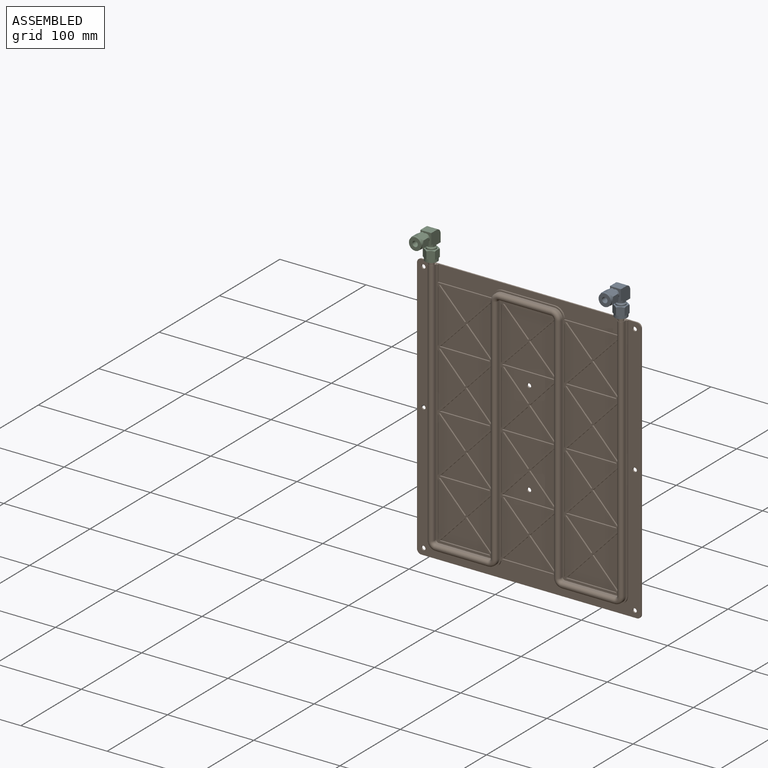
[diagram: assembled view]
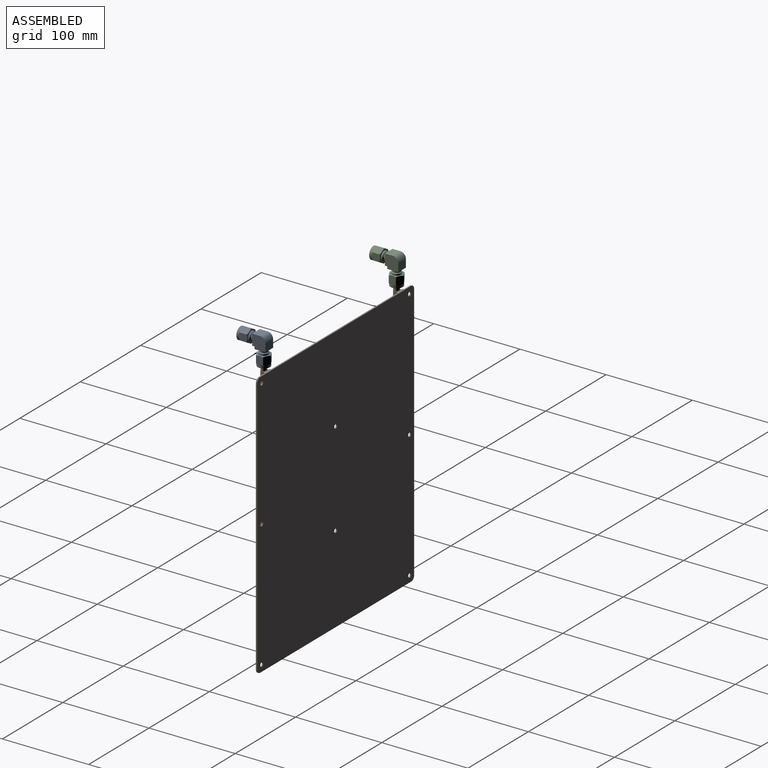
[diagram: assembled view, second angle]
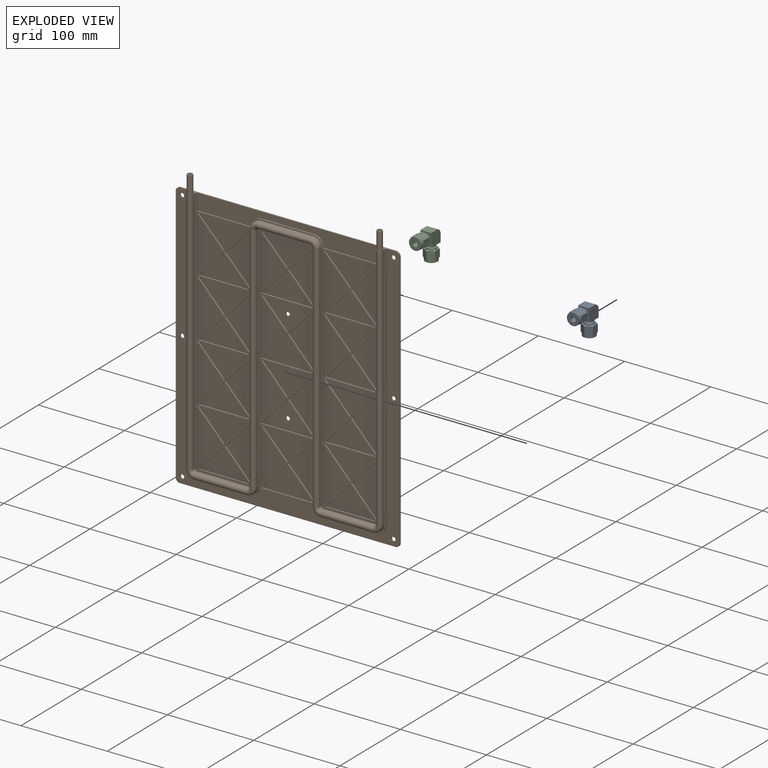
[diagram: exploded view]
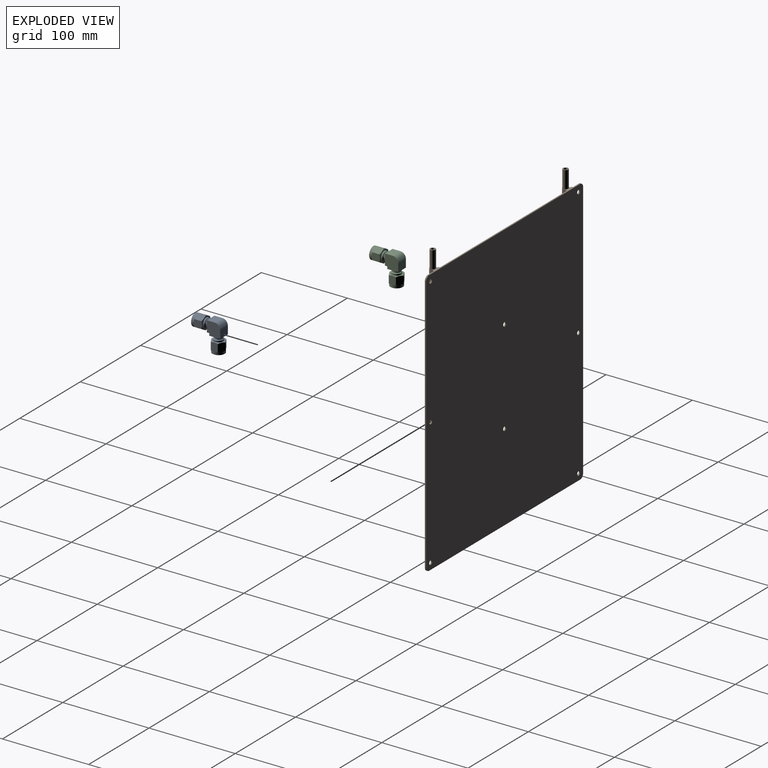
[diagram: exploded view, second angle]
ASSEMBLY  parts=3 mates=6
PART A: 64 faces, bbox 35.1x16.4x35.1 mm
  f0: cylinder r=3.17mm len=15.24mm, axis (1,0,0), area 304mm2, adj f1,f2
  f1: plane 6.35x6.35mm, normal (-1,0,0), area 13.4mm2, adj f0,f3
  f2: plane 14.22x14.22mm, normal (-1,0,0), area 127.2mm2, adj f0,f5
  f3: cylinder r=2.41mm len=11.68mm, axis (1,0,0), area 165.5mm2, adj f1,f4,f6
  f4: sphere r=2.41mm, area 18.3mm2, adj f3,f6
  f5: cylinder r=7.11mm len=14.22mm, axis (1,0,0), area 136.2mm2, adj f2,f7,f8,f9,f10,f11,f12
  f6: cylinder r=2.41mm len=11.68mm, axis (0,0,-1), area 165.5mm2, adj f3,f4,f13
  f7: cone r=7.66mm half-angle=60deg, axis (1,0,0), area 3.1mm2, adj f5,f14,f15
  f8: cone r=7.66mm half-angle=60deg, axis (1,0,0), area 3.1mm2, adj f5,f15,f16
  f9: cone r=7.66mm half-angle=60deg, axis (1,0,0), area 3.1mm2, adj f5,f16,f17
  f10: cone r=7.66mm half-angle=60deg, axis (1,0,0), area 3.1mm2, adj f5,f17,f18
  f11: cone r=7.66mm half-angle=60deg, axis (1,0,0), area 3.1mm2, adj f5,f18,f19
  f12: cone r=7.66mm half-angle=60deg, axis (1,0,0), area 3.1mm2, adj f5,f14,f19
  f13: plane 6.35x6.35mm, normal (0,0,-1), area 13.4mm2, adj f6,f20
  f14: plane 9.65x8.21mm, normal (0,1,0), area 75.7mm2, adj f7,f12,f15,f19,f21,f22
  f15: plane 9.65x7.11mm, normal (0,0.5,-0.87), area 75.7mm2, adj f7,f8,f14,f16,f22,f23
  f16: plane 9.65x7.11mm, normal (0,-0.5,-0.87), area 75.7mm2, adj f8,f9,f15,f17,f23,f24
  f17: plane 9.65x8.21mm, normal (0,-1,0), area 75.7mm2, adj f9,f10,f16,f18,f24,f25
  f18: plane 9.65x7.11mm, normal (0,-0.5,0.87), area 75.7mm2, adj f10,f11,f17,f19,f25,f26
  f19: plane 9.65x7.11mm, normal (0,0.5,0.87), area 75.7mm2, adj f11,f12,f14,f18,f21,f26
  f20: cylinder r=3.17mm len=15.24mm, axis (0,0,1), area 304mm2, adj f13,f27
  f21: cone r=7.66mm half-angle=60deg, axis (-1,0,0), area 3.1mm2, adj f14,f19,f28
  f22: cone r=7.66mm half-angle=60deg, axis (-1,0,0), area 3.1mm2, adj f14,f15,f28
  f23: cone r=7.66mm half-angle=60deg, axis (-1,0,0), area 3.1mm2, adj f15,f16,f28
  f24: cone r=7.66mm half-angle=60deg, axis (-1,0,0), area 3.1mm2, adj f16,f17,f28
  f25: cone r=7.66mm half-angle=60deg, axis (-1,0,0), area 3.1mm2, adj f17,f18,f28
  f26: cone r=7.66mm half-angle=60deg, axis (-1,0,0), area 3.1mm2, adj f18,f19,f28
  f27: plane 14.22x14.22mm, normal (0,0,-1), area 127.2mm2, adj f20,f29
  f28: plane 14.22x14.22mm, normal (1,0,0), area 61.9mm2, adj f21,f22,f23,f24,f25,f26,f30
  f29: cylinder r=7.11mm len=14.22mm, axis (0,0,1), area 136.2mm2, adj f27,f31,f32,f33,f34,f35,f36
  f30: cylinder r=5.56mm len=11.11mm, axis (1,0,0), area 51mm2, adj f28,f37
  f31: cone r=7.66mm half-angle=60deg, axis (0,0,1), area 3.1mm2, adj f29,f38,f39
  f32: cone r=7.66mm half-angle=60deg, axis (0,0,1), area 3.1mm2, adj f29,f39,f40
  f33: cone r=7.66mm half-angle=60deg, axis (0,0,1), area 3.1mm2, adj f29,f40,f41
  f34: cone r=7.66mm half-angle=60deg, axis (0,0,1), area 3.1mm2, adj f29,f41,f42
  f35: cone r=7.66mm half-angle=60deg, axis (0,0,1), area 3.1mm2, adj f29,f42,f43
  f36: cone r=7.66mm half-angle=60deg, axis (0,0,1), area 3.1mm2, adj f29,f38,f43
  f37: cone r=5.02mm half-angle=45deg, axis (-1,0,0), area 48.1mm2, adj f30,f44
  f38: plane 9.65x8.21mm, normal (0,1,0), area 75.7mm2, adj f31,f36,f39,f43,f45,f46
  f39: plane 9.65x7.11mm, normal (0.87,0.5,0), area 75.7mm2, adj f31,f32,f38,f40,f46,f47
  f40: plane 9.65x7.11mm, normal (0.87,-0.5,0), area 75.7mm2, adj f32,f33,f39,f41,f47,f48
  f41: plane 9.65x8.21mm, normal (0,-1,0), area 75.7mm2, adj f33,f34,f40,f42,f48,f49
  f42: plane 9.65x7.11mm, normal (-0.87,-0.5,0), area 75.7mm2, adj f34,f35,f41,f43,f49,f50
  f43: plane 9.65x7.11mm, normal (-0.87,0.5,0), area 75.7mm2, adj f35,f36,f38,f42,f45,f50
  f44: cylinder r=4.48mm len=8.95mm, axis (1,0,0), area 71.4mm2, adj f37,f52
  f45: cone r=7.66mm half-angle=60deg, axis (0,0,-1), area 3.1mm2, adj f38,f43,f55
  f46: cone r=7.66mm half-angle=60deg, axis (0,0,-1), area 3.1mm2, adj f38,f39,f55
  f47: cone r=7.66mm half-angle=60deg, axis (0,0,-1), area 3.1mm2, adj f39,f40,f55
  f48: cone r=7.66mm half-angle=60deg, axis (0,0,-1), area 3.1mm2, adj f40,f41,f55
  f49: cone r=7.66mm half-angle=60deg, axis (0,0,-1), area 3.1mm2, adj f41,f42,f55
  f50: cone r=7.66mm half-angle=60deg, axis (0,0,-1), area 3.1mm2, adj f42,f43,f55
  f51: plane 12.7x2.79mm, normal (0,0,-1), area 35.5mm2, adj f52,f57,f58,f59
  f52: plane 12.7x12.7mm, normal (-1,0,0), area 98.3mm2, adj f44,f51,f53,f57,f59
  f53: plane 12.7x9.14mm, normal (0,0,1), area 116.1mm2, adj f52,f54,f57,f59
  f54: cylinder r=6.35mm len=12.7mm, axis (0,-1,0), area 126.7mm2, adj f53,f57,f59,f60
  f55: plane 14.22x14.22mm, normal (0,0,1), area 61.9mm2, adj f45,f46,f47,f48,f49,f50,f56
  f56: cylinder r=5.56mm len=11.11mm, axis (0,0,1), area 51mm2, adj f55,f61
  f57: plane 15.49x15.49mm, normal (0,1,0), area 223.6mm2, adj f51,f52,f53,f54,f58,f60,f62
  f58: plane 12.7x2.79mm, normal (-1,0,0), area 35.5mm2, adj f51,f57,f59,f62
  f59: plane 15.49x15.49mm, normal (0,-1,0), area 223.6mm2, adj f51,f52,f53,f54,f58,f60,f62
  f60: plane 12.7x9.14mm, normal (1,0,0), area 116.1mm2, adj f54,f57,f59,f62
  f61: cone r=5.02mm half-angle=45deg, axis (0,0,-1), area 48.1mm2, adj f56,f63
  f62: plane 12.7x12.7mm, normal (0,0,-1), area 98.3mm2, adj f57,f58,f59,f60,f63
  f63: cylinder r=4.48mm len=8.95mm, axis (0,0,1), area 71.4mm2, adj f61,f62
PART B: 318 faces, bbox 260x9.8x330 mm
  f0: cylinder r=1.91mm len=31.02mm, axis (0,0,1), area 368.6mm2, adj f143,f316,f317
  f1: plane 64.4x30.19mm, normal (0,-1,0), area 972.3mm2, adj f15,f293,f294
  f2: plane 63.41x30.18mm, normal (0,-1,0), area 957mm2, adj f16,f295,f296
  f3: plane 310x260mm, normal (0,-1,0), area 12094.7mm2, adj f50,f71,f72,f73,f74,f75,f76,f77
  f4: plane 63.41x30.18mm, normal (0,-1,0), area 957mm2, adj f9,f281,f282
  f5: plane 64.4x30.19mm, normal (0,-1,0), area 972.3mm2, adj f10,f283,f284
  f6: plane 64.4x30.19mm, normal (0,-1,0), area 972.3mm2, adj f11,f285,f286
  f7: plane 62.17x30.17mm, normal (0,-1,0), area 937.9mm2, adj f12,f287,f288
  f8: plane 62.17x30.17mm, normal (0,-1,0), area 937.9mm2, adj f13,f289,f290
  f9: plane 63.41x1.59mm, normal (1,0,0), area 100.7mm2, adj f4,f128,f281,f282
  f10: plane 64.4x1.59mm, normal (1,0,0), area 102.2mm2, adj f5,f128,f283,f284
  f11: plane 64.4x1.59mm, normal (1,0,0), area 102.2mm2, adj f6,f128,f285,f286
  f12: plane 62.17x1.59mm, normal (1,0,0), area 98.7mm2, adj f7,f128,f287,f288
  f13: plane 62.17x1.59mm, normal (-1,0,0), area 98.7mm2, adj f8,f128,f289,f290
  f14: plane 64.4x1.59mm, normal (-1,0,0), area 102.2mm2, adj f114,f128,f291,f292
  f15: plane 64.4x1.59mm, normal (-1,0,0), area 102.2mm2, adj f1,f128,f293,f294
  f16: plane 63.41x1.59mm, normal (-1,0,0), area 100.7mm2, adj f2,f128,f295,f296
  f17: plane 63.84x30.19mm, normal (0,-1,0), area 963.7mm2, adj f27,f244,f245
  f18: plane 62.85x30.18mm, normal (0,-1,0), area 948.4mm2, adj f28,f246,f247
  f19: plane 209.84x18.65mm, normal (0,-1,0), area 3015.3mm2, adj f29,f50,f136,f138,f139,f140,f199,f248
  f20: plane 62.85x30.18mm, normal (0,-1,0), area 948.4mm2, adj f30,f232,f233
  f21: plane 63.84x30.19mm, normal (0,-1,0), area 963.7mm2, adj f31,f234,f235
  f22: plane 63.84x30.19mm, normal (0,-1,0), area 963.7mm2, adj f32,f236,f237
  f23: plane 63.84x30.19mm, normal (0,-1,0), area 963.7mm2, adj f33,f238,f239
  f24: plane 63.84x30.19mm, normal (0,-1,0), area 963.7mm2, adj f25,f240,f241
  f25: plane 63.84x1.59mm, normal (1,0,0), area 101.4mm2, adj f24,f137,f240,f241
  f26: plane 63.84x1.59mm, normal (1,0,0), area 101.4mm2, adj f36,f137,f242,f243
  f27: plane 63.84x1.59mm, normal (1,0,0), area 101.4mm2, adj f17,f137,f244,f245
  f28: plane 62.85x1.59mm, normal (1,0,0), area 99.8mm2, adj f18,f137,f246,f247
  f29: plane 18.65x1.59mm, normal (-1,0,0), area 29.6mm2, adj f19,f50,f137,f248
  f30: plane 62.85x1.59mm, normal (-1,0,0), area 99.8mm2, adj f20,f137,f232,f233
  f31: plane 63.84x1.59mm, normal (-1,0,0), area 101.4mm2, adj f21,f137,f234,f235
  f32: plane 63.84x1.59mm, normal (-1,0,0), area 101.4mm2, adj f22,f137,f236,f237
  f33: plane 63.84x1.59mm, normal (-1,0,0), area 101.4mm2, adj f23,f137,f238,f239
  f34: plane 63.84x30.19mm, normal (0,-1,0), area 963.7mm2, adj f44,f195,f196
  f35: plane 62.85x30.18mm, normal (0,-1,0), area 948.4mm2, adj f45,f197,f198
  f36: plane 63.84x30.19mm, normal (0,-1,0), area 963.7mm2, adj f26,f242,f243
  f37: plane 62.85x30.18mm, normal (0,-1,0), area 948.4mm2, adj f46,f183,f184
  f38: plane 63.84x30.19mm, normal (0,-1,0), area 963.7mm2, adj f47,f185,f186
  f39: plane 63.84x30.19mm, normal (0,-1,0), area 963.7mm2, adj f48,f187,f188
  f40: plane 63.84x30.19mm, normal (0,-1,0), area 963.7mm2, adj f49,f189,f190
  f41: plane 63.84x30.19mm, normal (0,-1,0), area 963.7mm2, adj f42,f191,f192
  f42: plane 63.84x1.59mm, normal (1,0,0), area 101.4mm2, adj f41,f137,f191,f192
  f43: plane 63.84x1.59mm, normal (1,0,0), area 101.4mm2, adj f124,f137,f193,f194
  f44: plane 63.84x1.59mm, normal (1,0,0), area 101.4mm2, adj f34,f137,f195,f196
  f45: plane 62.85x1.59mm, normal (1,0,0), area 99.8mm2, adj f35,f137,f197,f198
  f46: plane 62.85x1.59mm, normal (-1,0,0), area 99.8mm2, adj f37,f137,f183,f184
  f47: plane 63.84x1.59mm, normal (-1,0,0), area 101.4mm2, adj f38,f137,f185,f186
  f48: plane 63.84x1.59mm, normal (-1,0,0), area 101.4mm2, adj f39,f137,f187,f188
  f49: plane 63.84x1.59mm, normal (-1,0,0), area 101.4mm2, adj f40,f137,f189,f190
  f50: plane 250x9.78mm, normal (0,0,1), area 431.3mm2, adj f3,f19,f29,f56,f57,f73,f74,f78
  f51: plane 275.95x3.81mm, normal (-1,0,0), area 1051.4mm2, adj f52,f53,f112,f314
  f52: cylinder r=2.54mm len=275.95mm, axis (0,0,1), area 2202mm2, adj f51,f111,f113,f315
  f53: plane 287.78x225.08mm, normal (0,-1,0), area 6795.2mm2, adj f51,f54,f79,f80,f82,f83,f85,f86
  f54: plane 275.95x3.81mm, normal (-1,0,0), area 1051.4mm2, adj f53,f55,f80,f316
  f55: cylinder r=2.54mm len=275.95mm, axis (0,0,-1), area 2202mm2, adj f54,f79,f81,f317
  f56: plane 288.65x3.24mm, normal (1,0,0), area 934.8mm2, adj f50,f63,f137,f146
  f57: plane 288.65x3.24mm, normal (-1,0,0), area 934.8mm2, adj f50,f66,f137,f158
  f58: plane 60.63x3.24mm, normal (0,0,1), area 196.4mm2, adj f63,f64,f137,f148
  f59: plane 270x3.24mm, normal (-1,0,0), area 874.4mm2, adj f64,f125,f137,f150
  f60: plane 60.63x3.24mm, normal (0,0,1), area 196.4mm2, adj f125,f126,f137,f152
  f61: plane 270x3.24mm, normal (1,0,0), area 874.4mm2, adj f65,f126,f137,f154
  f62: plane 60.63x3.24mm, normal (0,0,1), area 196.4mm2, adj f65,f66,f137,f156
  f63: cylinder r=2.92mm len=3.24mm, axis (0,-1,0), area 14.9mm2, adj f56,f58,f137,f147
  f64: cylinder r=2.92mm len=3.24mm, axis (0,-1,0), area 14.9mm2, adj f58,f59,f137,f149
  f65: cylinder r=2.92mm len=3.24mm, axis (0,-1,0), area 14.9mm2, adj f61,f62,f137,f155
  f66: cylinder r=2.92mm len=3.24mm, axis (0,-1,0), area 14.9mm2, adj f57,f62,f137,f157
  f67: cylinder r=9.78mm len=9.78mm, axis (0,-1,0), area 49.7mm2, adj f115,f122,f128,f147
  f68: cylinder r=9.78mm len=9.78mm, axis (0,-1,0), area 49.7mm2, adj f115,f116,f128,f149
  f69: cylinder r=9.78mm len=9.78mm, axis (0,-1,0), area 49.7mm2, adj f120,f121,f128,f155
  f70: cylinder r=9.78mm len=9.78mm, axis (0,-1,0), area 49.7mm2, adj f121,f123,f128,f157
  f71: plane 300x1.52mm, normal (-1,0,0), area 457.2mm2, adj f3,f74,f75,f78
  f72: cylinder r=5mm len=5mm, axis (0,1,0), area 12mm2, adj f3,f76,f77,f78
  f73: cylinder r=5mm len=5mm, axis (0,-1,0), area 12mm2, adj f3,f50,f77,f78
  f74: cylinder r=5mm len=5mm, axis (0,1,0), area 12mm2, adj f3,f50,f71,f78
  f75: cylinder r=5mm len=5mm, axis (0,-1,0), area 12mm2, adj f3,f71,f76,f78
  f76: plane 250x1.52mm, normal (0,0,-1), area 381mm2, adj f3,f72,f75,f78
  f77: plane 300x1.52mm, normal (1,0,0), area 457.2mm2, adj f3,f72,f73,f78
  f78: plane 310x260mm, normal (0,1,0), area 80436mm2, adj f50,f71,f72,f73,f74,f75,f76,f77
  f79: plane 275.95x3.81mm, normal (1,0,0), area 1051.4mm2, adj f53,f55,f82,f316
  f80: cylinder r=3.81mm len=3.81mm, axis (0,-1,0), area 22.8mm2, adj f53,f54,f81,f83
  f81: torus R=6.35mm, axis (0,-1,0), area 79.6mm2, adj f55,f80,f82,f84
  f82: cylinder r=8.89mm len=8.89mm, axis (0,-1,0), area 53.2mm2, adj f53,f79,f81,f85
  f83: plane 60.63x3.81mm, normal (0,0,-1), area 231mm2, adj f53,f80,f84,f86
  f84: cylinder r=2.54mm len=60.63mm, axis (1,0,0), area 483.8mm2, adj f81,f83,f85,f87
  f85: plane 60.63x3.81mm, normal (0,0,1), area 231mm2, adj f53,f82,f84,f88
  f86: cylinder r=3.81mm len=3.81mm, axis (0,-1,0), area 22.8mm2, adj f53,f83,f87,f89
  f87: torus R=6.35mm, axis (0,-1,0), area 79.6mm2, adj f84,f86,f88,f90
  f88: cylinder r=8.89mm len=8.89mm, axis (0,-1,0), area 53.2mm2, adj f53,f85,f87,f91
  f89: plane 270x3.81mm, normal (1,0,0), area 1028.7mm2, adj f53,f86,f90,f92
  f90: cylinder r=2.54mm len=270mm, axis (0,0,1), area 2154.5mm2, adj f87,f89,f91,f93
  f91: plane 270x3.81mm, normal (-1,0,0), area 1028.7mm2, adj f53,f88,f90,f94
  f92: cylinder r=8.89mm len=8.89mm, axis (0,1,0), area 53.2mm2, adj f53,f89,f93,f95
  f93: torus R=6.35mm, axis (0,1,0), area 79.6mm2, adj f90,f92,f94,f96
  f94: cylinder r=3.81mm len=3.81mm, axis (0,1,0), area 22.8mm2, adj f53,f91,f93,f97
  f95: plane 60.63x3.81mm, normal (0,0,-1), area 231mm2, adj f53,f92,f96,f98
  f96: cylinder r=2.54mm len=60.63mm, axis (1,0,0), area 483.8mm2, adj f93,f95,f97,f99
  f97: plane 60.63x3.81mm, normal (0,0,1), area 231mm2, adj f53,f94,f96,f100
  f98: cylinder r=8.89mm len=8.89mm, axis (0,1,0), area 53.2mm2, adj f53,f95,f99,f101
  f99: torus R=6.35mm, axis (0,1,0), area 79.6mm2, adj f96,f98,f100,f102
  f100: cylinder r=3.81mm len=3.81mm, axis (0,1,0), area 22.8mm2, adj f53,f97,f99,f103
  f101: plane 270x3.81mm, normal (-1,0,0), area 1028.7mm2, adj f53,f98,f102,f104
  f102: cylinder r=2.54mm len=270mm, axis (0,0,-1), area 2154.5mm2, adj f99,f101,f103,f105
  f103: plane 270x3.81mm, normal (1,0,0), area 1028.7mm2, adj f53,f100,f102,f106
  f104: cylinder r=3.81mm len=3.81mm, axis (0,-1,0), area 22.8mm2, adj f53,f101,f105,f107
  f105: torus R=6.35mm, axis (0,-1,0), area 79.6mm2, adj f102,f104,f106,f108
  f106: cylinder r=8.89mm len=8.89mm, axis (0,-1,0), area 53.2mm2, adj f53,f103,f105,f109
  f107: plane 60.63x3.81mm, normal (0,0,-1), area 231mm2, adj f53,f104,f108,f110
  f108: cylinder r=2.54mm len=60.63mm, axis (1,0,0), area 483.8mm2, adj f105,f107,f109,f111
  f109: plane 60.63x3.81mm, normal (0,0,1), area 231mm2, adj f53,f106,f108,f112
  f110: cylinder r=3.81mm len=3.81mm, axis (0,-1,0), area 22.8mm2, adj f53,f107,f111,f113
  f111: torus R=6.35mm, axis (0,-1,0), area 79.6mm2, adj f52,f108,f110,f112
  f112: cylinder r=8.89mm len=8.89mm, axis (0,-1,0), area 53.2mm2, adj f51,f53,f109,f111
  f113: plane 275.95x3.81mm, normal (1,0,0), area 1051.4mm2, adj f52,f53,f110,f314
  f114: plane 64.4x30.19mm, normal (0,-1,0), area 972.3mm2, adj f14,f291,f292
  f115: plane 60.63x3.24mm, normal (0,0,-1), area 196.4mm2, adj f67,f68,f128,f148
  f116: plane 270x3.24mm, normal (1,0,0), area 874.4mm2, adj f68,f117,f128,f150
  f117: cylinder r=2.92mm len=3.24mm, axis (0,-1,0), area 14.9mm2, adj f116,f118,f128,f151
  f118: plane 60.63x3.24mm, normal (0,0,-1), area 196.4mm2, adj f117,f119,f128,f152
  f119: cylinder r=2.92mm len=3.24mm, axis (0,-1,0), area 14.9mm2, adj f118,f120,f128,f153
  f120: plane 270x3.24mm, normal (-1,0,0), area 874.4mm2, adj f69,f119,f128,f154
  f121: plane 60.63x3.24mm, normal (0,0,-1), area 196.4mm2, adj f69,f70,f128,f156
  f122: plane 288.65x3.24mm, normal (-1,0,0), area 934.8mm2, adj f50,f67,f128,f146
  f123: plane 288.65x3.24mm, normal (1,0,0), area 934.8mm2, adj f50,f70,f128,f158
  f124: plane 63.84x30.19mm, normal (0,-1,0), area 963.7mm2, adj f43,f193,f194
  f125: cylinder r=9.78mm len=9.78mm, axis (0,-1,0), area 49.7mm2, adj f59,f60,f137,f151
  f126: cylinder r=9.78mm len=9.78mm, axis (0,-1,0), area 49.7mm2, adj f60,f61,f137,f153
  f127: plane 288.65x1.59mm, normal (-1,0,0), area 458.2mm2, adj f3,f50,f128,f129
  f128: plane 300.08x230.16mm, normal (0,-1,0), area 4430.8mm2, adj f9,f10,f11,f12,f13,f14,f15,f16
  f129: cylinder r=11.43mm len=11.43mm, axis (0,-1,0), area 28.5mm2, adj f3,f127,f128,f130
  f130: plane 60.63x1.59mm, normal (0,0,-1), area 96.3mm2, adj f3,f128,f129,f131
  f131: cylinder r=11.43mm len=11.2mm, axis (0,-1,0), area 24.8mm2, adj f3,f128,f130,f297
  f132: cylinder r=11.43mm len=11.2mm, axis (0,-1,0), area 24.8mm2, adj f3,f128,f133,f297
  f133: plane 60.63x1.59mm, normal (0,0,-1), area 96.3mm2, adj f3,f128,f132,f134
  f134: cylinder r=11.43mm len=11.43mm, axis (0,-1,0), area 28.5mm2, adj f3,f128,f133,f135
  f135: plane 288.65x1.59mm, normal (1,0,0), area 458.2mm2, adj f3,f50,f128,f134
  f136: plane 18.65x1.59mm, normal (1,0,0), area 29.6mm2, adj f19,f50,f137,f199
  f137: plane 291.57x213.14mm, normal (0,-1,0), area 6262.1mm2, adj f25,f26,f27,f28,f29,f30,f31,f32
  f138: cylinder r=11.43mm len=11.43mm, axis (0,1,0), area 28.5mm2, adj f19,f137,f139,f199
  f139: plane 60.63x1.59mm, normal (0,0,1), area 96.3mm2, adj f19,f137,f138,f140
  f140: cylinder r=11.43mm len=11.43mm, axis (0,1,0), area 28.5mm2, adj f19,f137,f139,f248
  f141: cylinder r=1.91mm len=31.02mm, axis (0,0,1), area 368.6mm2, adj f145,f314,f315
  f142: cylinder r=3.17mm len=20mm, axis (0,0,-1), area 399mm2, adj f50,f143
  f143: plane 6.35x6.35mm, normal (0,0,1), area 20.3mm2, adj f0,f142
  f144: cylinder r=3.17mm len=20mm, axis (0,0,-1), area 399mm2, adj f50,f145
  f145: plane 6.35x6.35mm, normal (0,0,1), area 20.3mm2, adj f141,f144
  f146: cylinder r=3.43mm len=288.65mm, axis (0,0,1), area 3109.5mm2, adj f50,f56,f122,f147
  f147: torus R=6.35mm, axis (0,-1,0), area 107.5mm2, adj f63,f67,f146,f148
  f148: cylinder r=3.43mm len=60.63mm, axis (-1,0,0), area 653.2mm2, adj f58,f115,f147,f149
  f149: torus R=6.35mm, axis (0,-1,0), area 107.5mm2, adj f64,f68,f148,f150
  f150: cylinder r=3.43mm len=270mm, axis (0,0,-1), area 2908.6mm2, adj f59,f116,f149,f151
  f151: torus R=6.35mm, axis (0,-1,0), area 107.5mm2, adj f117,f125,f150,f152
  f152: cylinder r=3.43mm len=60.63mm, axis (-1,0,0), area 653.2mm2, adj f60,f118,f151,f153
  f153: torus R=6.35mm, axis (0,-1,0), area 107.5mm2, adj f119,f126,f152,f154
  f154: cylinder r=3.43mm len=270mm, axis (0,0,1), area 2908.6mm2, adj f61,f120,f153,f155
  f155: torus R=6.35mm, axis (0,-1,0), area 107.5mm2, adj f65,f69,f154,f156
  f156: cylinder r=3.43mm len=60.63mm, axis (-1,0,0), area 653.2mm2, adj f62,f121,f155,f157
  f157: torus R=6.35mm, axis (0,-1,0), area 107.5mm2, adj f66,f70,f156,f158
  f158: cylinder r=3.43mm len=288.65mm, axis (0,0,-1), area 3109.5mm2, adj f50,f57,f123,f157
  f159: plane 58.46x1.59mm, normal (0,0,1), area 92.8mm2, adj f137,f160,f161,f206
  f160: plane 30.91x29.23mm, normal (-0.73,0,-0.69), area 67.5mm2, adj f137,f159,f161,f206
  f161: plane 30.91x29.23mm, normal (0.73,0,-0.69), area 67.5mm2, adj f137,f159,f160,f206
  f162: plane 31.92x30.19mm, normal (0.73,0,0.69), area 69.7mm2, adj f137,f163,f164,f205
  f163: plane 31.92x30.19mm, normal (-0.73,0,0.69), area 69.7mm2, adj f137,f162,f164,f205
  f164: plane 60.38x1.59mm, normal (0,0,-1), area 95.8mm2, adj f137,f162,f163,f205
  f165: plane 58.46x1.59mm, normal (0,0,1), area 92.8mm2, adj f137,f166,f167,f204
  f166: plane 30.91x29.23mm, normal (-0.73,0,-0.69), area 67.5mm2, adj f137,f165,f167,f204
  f167: plane 30.91x29.23mm, normal (0.73,0,-0.69), area 67.5mm2, adj f137,f165,f166,f204
  f168: plane 31.92x30.19mm, normal (0.73,0,0.69), area 69.7mm2, adj f137,f169,f170,f203
  f169: plane 31.92x30.19mm, normal (-0.73,0,0.69), area 69.7mm2, adj f137,f168,f170,f203
  f170: plane 60.38x1.59mm, normal (0,0,-1), area 95.8mm2, adj f137,f168,f169,f203
  f171: plane 58.46x1.59mm, normal (0,0,1), area 92.8mm2, adj f137,f172,f173,f202
  f172: plane 30.91x29.23mm, normal (-0.73,0,-0.69), area 67.5mm2, adj f137,f171,f173,f202
  f173: plane 30.91x29.23mm, normal (0.73,0,-0.69), area 67.5mm2, adj f137,f171,f172,f202
  f174: plane 31.92x30.19mm, normal (0.73,0,0.69), area 69.7mm2, adj f137,f175,f176,f201
  f175: plane 31.92x30.19mm, normal (-0.73,0,0.69), area 69.7mm2, adj f137,f174,f176,f201
  f176: plane 60.38x1.59mm, normal (0,0,-1), area 95.8mm2, adj f137,f174,f175,f201
  f177: plane 58.41x1.59mm, normal (0,0,1), area 92.7mm2, adj f137,f178,f179,f200
  f178: plane 30.41x29.2mm, normal (-0.72,0,-0.69), area 66.9mm2, adj f137,f177,f179,f200
  f179: plane 30.41x29.2mm, normal (0.72,0,-0.69), area 66.9mm2, adj f137,f177,f178,f200
  f180: plane 31.43x30.18mm, normal (0.72,0,0.69), area 69.2mm2, adj f137,f181,f182,f207
  f181: plane 31.43x30.18mm, normal (-0.72,0,0.69), area 69.2mm2, adj f137,f180,f182,f207
  f182: plane 60.36x1.59mm, normal (0,0,-1), area 95.8mm2, adj f137,f180,f181,f207
  f183: plane 31.43x30.18mm, normal (0.72,0,-0.69), area 69.2mm2, adj f37,f46,f137,f184
  f184: plane 31.43x30.18mm, normal (0.72,0,0.69), area 69.2mm2, adj f37,f46,f137,f183
  f185: plane 31.92x30.19mm, normal (0.73,0,-0.69), area 69.7mm2, adj f38,f47,f137,f186
  f186: plane 31.92x30.19mm, normal (0.73,0,0.69), area 69.7mm2, adj f38,f47,f137,f185
  f187: plane 31.92x30.19mm, normal (0.73,0,-0.69), area 69.7mm2, adj f39,f48,f137,f188
  f188: plane 31.92x30.19mm, normal (0.73,0,0.69), area 69.7mm2, adj f39,f48,f137,f187
  f189: plane 31.92x30.19mm, normal (0.73,0,-0.69), area 69.7mm2, adj f40,f49,f137,f190
  f190: plane 31.92x30.19mm, normal (0.73,0,0.69), area 69.7mm2, adj f40,f49,f137,f189
  f191: plane 31.92x30.19mm, normal (-0.73,0,0.69), area 69.7mm2, adj f41,f42,f137,f192
  f192: plane 31.92x30.19mm, normal (-0.73,0,-0.69), area 69.7mm2, adj f41,f42,f137,f191
  f193: plane 31.92x30.19mm, normal (-0.73,0,0.69), area 69.7mm2, adj f43,f124,f137,f194
  f194: plane 31.92x30.19mm, normal (-0.73,0,-0.69), area 69.7mm2, adj f43,f124,f137,f193
  f195: plane 31.92x30.19mm, normal (-0.73,0,0.69), area 69.7mm2, adj f34,f44,f137,f196
  f196: plane 31.92x30.19mm, normal (-0.73,0,-0.69), area 69.7mm2, adj f34,f44,f137,f195
  f197: plane 31.43x30.18mm, normal (-0.72,0,0.69), area 69.2mm2, adj f35,f45,f137,f198
  f198: plane 31.43x30.18mm, normal (-0.72,0,-0.69), area 69.2mm2, adj f35,f45,f137,f197
  f199: plane 63.17x1.59mm, normal (0,0,1), area 100.3mm2, adj f19,f136,f137,f138
  f200: plane 58.41x30.41mm, normal (0,-1,0), area 888mm2, adj f177,f178,f179
  f201: plane 60.38x31.92mm, normal (0,-1,0), area 963.7mm2, adj f174,f175,f176
  f202: plane 58.46x30.91mm, normal (0,-1,0), area 903.3mm2, adj f171,f172,f173
  f203: plane 60.38x31.92mm, normal (0,-1,0), area 963.7mm2, adj f168,f169,f170
  f204: plane 58.46x30.91mm, normal (0,-1,0), area 903.3mm2, adj f165,f166,f167
  f205: plane 60.38x31.92mm, normal (0,-1,0), area 963.7mm2, adj f162,f163,f164
  f206: plane 58.46x30.91mm, normal (0,-1,0), area 903.3mm2, adj f159,f160,f161
  f207: plane 60.36x31.43mm, normal (0,-1,0), area 948.4mm2, adj f180,f181,f182
  f208: plane 58.46x1.59mm, normal (0,0,1), area 92.8mm2, adj f137,f209,f210,f255
  f209: plane 30.91x29.23mm, normal (-0.73,0,-0.69), area 67.5mm2, adj f137,f208,f210,f255
  f210: plane 30.91x29.23mm, normal (0.73,0,-0.69), area 67.5mm2, adj f137,f208,f209,f255
  f211: plane 31.92x30.19mm, normal (0.73,0,0.69), area 69.7mm2, adj f137,f212,f213,f254
  f212: plane 31.92x30.19mm, normal (-0.73,0,0.69), area 69.7mm2, adj f137,f211,f213,f254
  f213: plane 60.38x1.59mm, normal (0,0,-1), area 95.8mm2, adj f137,f211,f212,f254
  f214: plane 58.46x1.59mm, normal (0,0,1), area 92.8mm2, adj f137,f215,f216,f253
  f215: plane 30.91x29.23mm, normal (-0.73,0,-0.69), area 67.5mm2, adj f137,f214,f216,f253
  f216: plane 30.91x29.23mm, normal (0.73,0,-0.69), area 67.5mm2, adj f137,f214,f215,f253
  f217: plane 31.92x30.19mm, normal (0.73,0,0.69), area 69.7mm2, adj f137,f218,f219,f252
  f218: plane 31.92x30.19mm, normal (-0.73,0,0.69), area 69.7mm2, adj f137,f217,f219,f252
  f219: plane 60.38x1.59mm, normal (0,0,-1), area 95.8mm2, adj f137,f217,f218,f252
  f220: plane 58.46x1.59mm, normal (0,0,1), area 92.8mm2, adj f137,f221,f222,f251
  f221: plane 30.91x29.23mm, normal (-0.73,0,-0.69), area 67.5mm2, adj f137,f220,f222,f251
  f222: plane 30.91x29.23mm, normal (0.73,0,-0.69), area 67.5mm2, adj f137,f220,f221,f251
  f223: plane 31.92x30.19mm, normal (0.73,0,0.69), area 69.7mm2, adj f137,f224,f225,f250
  f224: plane 31.92x30.19mm, normal (-0.73,0,0.69), area 69.7mm2, adj f137,f223,f225,f250
  f225: plane 60.38x1.59mm, normal (0,0,-1), area 95.8mm2, adj f137,f223,f224,f250
  f226: plane 58.41x1.59mm, normal (0,0,1), area 92.7mm2, adj f137,f227,f228,f249
  f227: plane 30.41x29.2mm, normal (-0.72,0,-0.69), area 66.9mm2, adj f137,f226,f228,f249
  f228: plane 30.41x29.2mm, normal (0.72,0,-0.69), area 66.9mm2, adj f137,f226,f227,f249
  f229: plane 31.43x30.18mm, normal (0.72,0,0.69), area 69.2mm2, adj f137,f230,f231,f256
  f230: plane 31.43x30.18mm, normal (-0.72,0,0.69), area 69.2mm2, adj f137,f229,f231,f256
  f231: plane 60.36x1.59mm, normal (0,0,-1), area 95.8mm2, adj f137,f229,f230,f256
  f232: plane 31.43x30.18mm, normal (0.72,0,-0.69), area 69.2mm2, adj f20,f30,f137,f233
  f233: plane 31.43x30.18mm, normal (0.72,0,0.69), area 69.2mm2, adj f20,f30,f137,f232
  f234: plane 31.92x30.19mm, normal (0.73,0,-0.69), area 69.7mm2, adj f21,f31,f137,f235
  f235: plane 31.92x30.19mm, normal (0.73,0,0.69), area 69.7mm2, adj f21,f31,f137,f234
  f236: plane 31.92x30.19mm, normal (0.73,0,-0.69), area 69.7mm2, adj f22,f32,f137,f237
  f237: plane 31.92x30.19mm, normal (0.73,0,0.69), area 69.7mm2, adj f22,f32,f137,f236
  f238: plane 31.92x30.19mm, normal (0.73,0,-0.69), area 69.7mm2, adj f23,f33,f137,f239
  f239: plane 31.92x30.19mm, normal (0.73,0,0.69), area 69.7mm2, adj f23,f33,f137,f238
  f240: plane 31.92x30.19mm, normal (-0.73,0,0.69), area 69.7mm2, adj f24,f25,f137,f241
  f241: plane 31.92x30.19mm, normal (-0.73,0,-0.69), area 69.7mm2, adj f24,f25,f137,f240
  f242: plane 31.92x30.19mm, normal (-0.73,0,0.69), area 69.7mm2, adj f26,f36,f137,f243
  f243: plane 31.92x30.19mm, normal (-0.73,0,-0.69), area 69.7mm2, adj f26,f36,f137,f242
  f244: plane 31.92x30.19mm, normal (-0.73,0,0.69), area 69.7mm2, adj f17,f27,f137,f245
  f245: plane 31.92x30.19mm, normal (-0.73,0,-0.69), area 69.7mm2, adj f17,f27,f137,f244
  f246: plane 31.43x30.18mm, normal (-0.72,0,0.69), area 69.2mm2, adj f18,f28,f137,f247
  f247: plane 31.43x30.18mm, normal (-0.72,0,-0.69), area 69.2mm2, adj f18,f28,f137,f246
  f248: plane 63.17x1.59mm, normal (0,0,1), area 100.3mm2, adj f19,f29,f137,f140
  f249: plane 58.41x30.41mm, normal (0,-1,0), area 888mm2, adj f226,f227,f228
  f250: plane 60.38x31.92mm, normal (0,-1,0), area 963.7mm2, adj f223,f224,f225
  f251: plane 58.46x30.91mm, normal (0,-1,0), area 903.3mm2, adj f220,f221,f222
  f252: plane 60.38x31.92mm, normal (0,-1,0), area 963.7mm2, adj f217,f218,f219
  f253: plane 58.46x30.91mm, normal (0,-1,0), area 903.3mm2, adj f214,f215,f216
  f254: plane 60.38x31.92mm, normal (0,-1,0), area 963.7mm2, adj f211,f212,f213
  f255: plane 58.46x30.91mm, normal (0,-1,0), area 903.3mm2, adj f208,f209,f210
  f256: plane 60.36x31.43mm, normal (0,-1,0), area 948.4mm2, adj f229,f230,f231
  f257: plane 58.48x1.59mm, normal (0,0,-1), area 92.8mm2, adj f128,f258,f259,f304
  f258: plane 31.19x29.24mm, normal (0.73,0,0.68), area 67.9mm2, adj f128,f257,f259,f304
  f259: plane 31.19x29.24mm, normal (-0.73,0,0.68), area 67.9mm2, adj f128,f257,f258,f304
  f260: plane 32.2x30.19mm, normal (-0.73,0,-0.68), area 70.1mm2, adj f128,f261,f262,f303
  f261: plane 32.2x30.19mm, normal (0.73,0,-0.68), area 70.1mm2, adj f128,f260,f262,f303
  f262: plane 60.39x1.59mm, normal (0,0,1), area 95.9mm2, adj f128,f260,f261,f303
  f263: plane 58.48x1.59mm, normal (0,0,-1), area 92.8mm2, adj f128,f264,f265,f302
  f264: plane 31.19x29.24mm, normal (0.73,0,0.68), area 67.9mm2, adj f128,f263,f265,f302
  f265: plane 31.19x29.24mm, normal (-0.73,0,0.68), area 67.9mm2, adj f128,f263,f264,f302
  f266: plane 32.2x30.19mm, normal (-0.73,0,-0.68), area 70.1mm2, adj f128,f267,f268,f301
  f267: plane 32.2x30.19mm, normal (0.73,0,-0.68), area 70.1mm2, adj f128,f266,f268,f301
  f268: plane 60.39x1.59mm, normal (0,0,1), area 95.9mm2, adj f128,f266,f267,f301
  f269: plane 58.37x1.59mm, normal (0,0,-1), area 92.7mm2, adj f128,f270,f271,f300
  f270: plane 30.07x29.18mm, normal (0.72,0,0.7), area 66.5mm2, adj f128,f269,f271,f300
  f271: plane 30.07x29.18mm, normal (-0.72,0,0.7), area 66.5mm2, adj f128,f269,f270,f300
  f272: plane 31.08x30.17mm, normal (-0.72,0,-0.7), area 68.8mm2, adj f128,f273,f274,f299
  f273: plane 31.08x30.17mm, normal (0.72,0,-0.7), area 68.8mm2, adj f128,f272,f274,f299
  f274: plane 60.34x1.59mm, normal (0,0,1), area 95.8mm2, adj f128,f272,f273,f299
  f275: plane 58.43x1.59mm, normal (0,0,-1), area 92.8mm2, adj f128,f276,f277,f298
  f276: plane 30.69x29.22mm, normal (0.72,0,0.69), area 67.3mm2, adj f128,f275,f277,f298
  f277: plane 30.69x29.22mm, normal (-0.72,0,0.69), area 67.3mm2, adj f128,f275,f276,f298
  f278: plane 31.71x30.18mm, normal (-0.72,0,-0.69), area 69.5mm2, adj f128,f279,f280,f305
  f279: plane 31.71x30.18mm, normal (0.72,0,-0.69), area 69.5mm2, adj f128,f278,f280,f305
  f280: plane 60.37x1.59mm, normal (0,0,1), area 95.8mm2, adj f128,f278,f279,f305
  f281: plane 31.71x30.18mm, normal (-0.72,0,0.69), area 69.5mm2, adj f4,f9,f128,f282
  f282: plane 31.71x30.18mm, normal (-0.72,0,-0.69), area 69.5mm2, adj f4,f9,f128,f281
  f283: plane 32.2x30.19mm, normal (-0.73,0,0.68), area 70.1mm2, adj f5,f10,f128,f284
  f284: plane 32.2x30.19mm, normal (-0.73,0,-0.68), area 70.1mm2, adj f5,f10,f128,f283
  f285: plane 32.2x30.19mm, normal (-0.73,0,0.68), area 70.1mm2, adj f6,f11,f128,f286
  f286: plane 32.2x30.19mm, normal (-0.73,0,-0.68), area 70.1mm2, adj f6,f11,f128,f285
  f287: plane 31.08x30.17mm, normal (-0.72,0,0.7), area 68.8mm2, adj f7,f12,f128,f288
  f288: plane 31.08x30.17mm, normal (-0.72,0,-0.7), area 68.8mm2, adj f7,f12,f128,f287
  f289: plane 31.08x30.17mm, normal (0.72,0,-0.7), area 68.8mm2, adj f8,f13,f128,f290
  f290: plane 31.08x30.17mm, normal (0.72,0,0.7), area 68.8mm2, adj f8,f13,f128,f289
  f291: plane 32.2x30.19mm, normal (0.73,0,-0.68), area 70.1mm2, adj f14,f114,f128,f292
  f292: plane 32.2x30.19mm, normal (0.73,0,0.68), area 70.1mm2, adj f14,f114,f128,f291
  f293: plane 32.2x30.19mm, normal (0.73,0,-0.68), area 70.1mm2, adj f1,f15,f128,f294
  f294: plane 32.2x30.19mm, normal (0.73,0,0.68), area 70.1mm2, adj f1,f15,f128,f293
  f295: plane 31.71x30.18mm, normal (0.72,0,-0.69), area 69.5mm2, adj f2,f16,f128,f296
  f296: plane 31.71x30.18mm, normal (0.72,0,0.69), area 69.5mm2, adj f2,f16,f128,f295
  f297: plane 63.64x1.59mm, normal (0,0,-1), area 101mm2, adj f3,f128,f131,f132
  f298: plane 58.43x30.69mm, normal (0,-1,0), area 896.6mm2, adj f275,f276,f277
  f299: plane 60.34x31.08mm, normal (0,-1,0), area 937.9mm2, adj f272,f273,f274
  f300: plane 58.37x30.07mm, normal (0,-1,0), area 877.5mm2, adj f269,f270,f271
  f301: plane 60.39x32.2mm, normal (0,-1,0), area 954.5mm2, adj f266,f267,f268,f312
  f302: plane 58.48x31.19mm, normal (0,-1,0), area 911.9mm2, adj f263,f264,f265
  f303: plane 60.39x32.2mm, normal (0,-1,0), area 972.3mm2, adj f260,f261,f262
  f304: plane 58.48x31.19mm, normal (0,-1,0), area 894.1mm2, adj f257,f258,f259,f313
  f305: plane 60.37x31.71mm, normal (0,-1,0), area 957mm2, adj f278,f279,f280
  f306: cylinder r=2.38mm len=4.76mm, axis (0,-1,0), area 22.8mm2, adj f3,f78
  f307: cylinder r=2.38mm len=4.76mm, axis (0,-1,0), area 22.8mm2, adj f3,f78
  f308: cylinder r=2.38mm len=4.76mm, axis (0,-1,0), area 22.8mm2, adj f3,f78
  f309: cylinder r=2.38mm len=4.76mm, axis (0,-1,0), area 22.8mm2, adj f3,f78
  f310: cylinder r=2.38mm len=4.76mm, axis (0,-1,0), area 22.8mm2, adj f3,f78
  f311: cylinder r=2.38mm len=4.76mm, axis (0,-1,0), area 22.8mm2, adj f3,f78
  f312: cylinder r=2.38mm len=4.76mm, axis (0,-1,0), area 22.8mm2, adj f78,f301
  f313: cylinder r=2.38mm len=4.76mm, axis (0,-1,0), area 22.8mm2, adj f78,f304
  f314: cylinder r=2.54mm len=5.08mm, axis (0,1,0), area 24.2mm2, adj f51,f53,f113,f141,f315
  f315: sphere r=2.54mm, area 13.4mm2, adj f52,f141,f314
  f316: cylinder r=2.54mm len=5.08mm, axis (0,-1,0), area 24.2mm2, adj f0,f53,f54,f79,f317
  f317: sphere r=2.54mm, area 13.4mm2, adj f0,f55,f316
PART C: same geometry as A
PLACE A rot(axis=(0,0,1),90deg) t=(34.02,-9.92,118.66)mm
PLACE B t=(-75.98,18.47,-68.02)mm
PLACE C rot(axis=(0,0,1),90deg) t=(-185.98,-9.92,118.66)mm
MATE parallel A.f60 <-> B.f78  axis (0,1,0) through (34.02,23.36,114.09)mm
MATE fastened C.f63 <-> B.f0  axis (0,0,-1) through (-185.98,17.01,106.98)mm
MATE fastened A.f63 <-> B.f52  axis (0,0,-1) through (34.02,17.01,106.98)mm
MATE cylindrical A.f63 <-> B.f52  axis (0,0,-1) through (34.02,17.01,106.98)mm
MATE cylindrical C.f63 <-> B.f0  axis (0,0,-1) through (-185.98,17.01,106.98)mm
MATE parallel C.f60 <-> B.f78  axis (0,1,0) through (-185.98,23.36,114.09)mm
